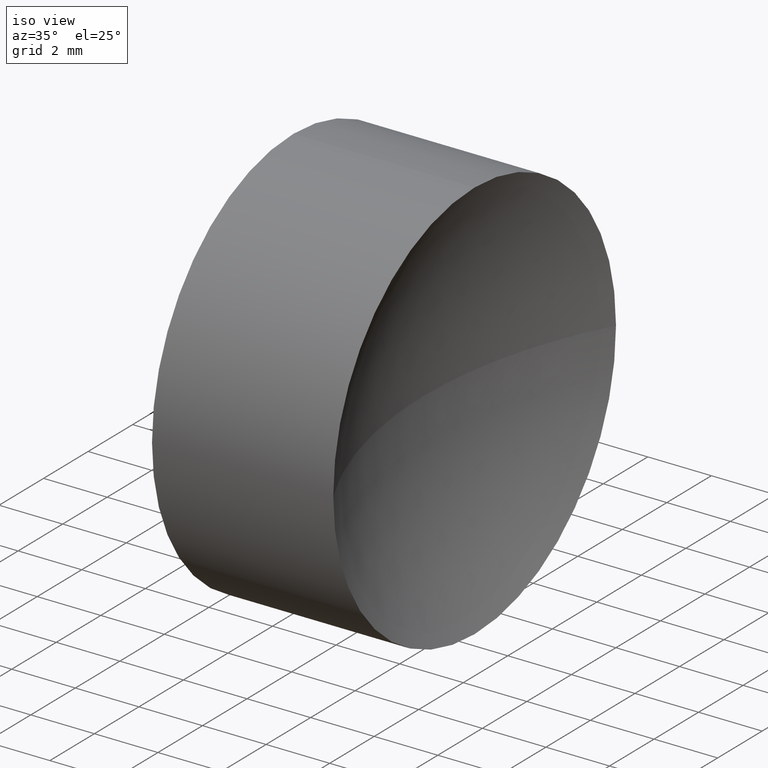
[diagram: clean part render]
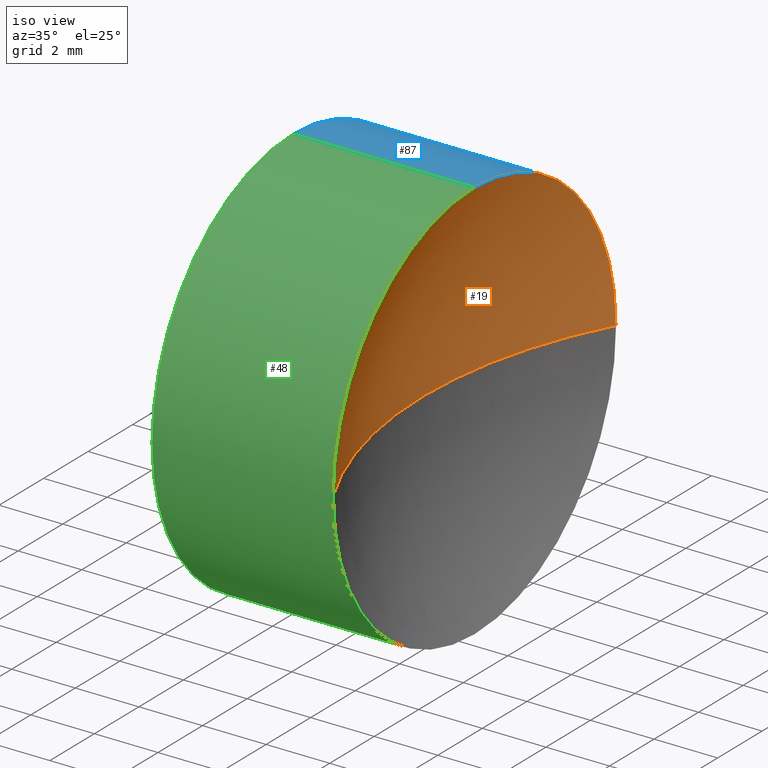
[diagram: same view with three faces highlighted in distinct colors, each labeled with its STEP entity id]
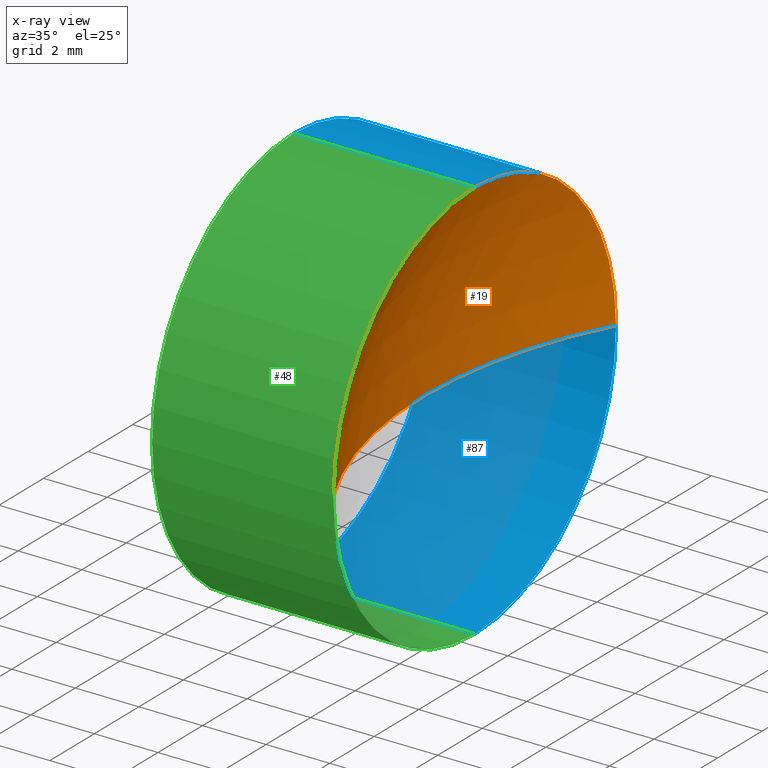
[diagram: x-ray of the same camera — body ghosted, the three highlighted faces saturated]
A machine part, iso view with three faces highlighted in distinct colors.
The next image is the same camera in x-ray (body ghosted, the three faces saturated) — at least one of them is partly hidden behind the body in this view.
Their STEP definitions:

[orange] entity #19 — the highlighted spherical surface has radius 13.4 mm.
#11 = EDGE_CURVE ( 'NONE', #61, #86, #193, .T. ) ;
#12 = DIRECTION ( 'NONE',  ( -1.000000000000000000, -0.0000000000000000000, -0.0000000000000000000 ) ) ;
#17 = ORIENTED_EDGE ( 'NONE', *, *, #145, .T. ) ;
#18 = CIRCLE ( 'NONE', #52, 6.350000000000012100 ) ;
#19 = ADVANCED_FACE ( 'NONE', ( #93 ), #99, .F. ) ;
#24 = DIRECTION ( 'NONE',  ( 0.0000000000000000000, 0.0000000000000000000, 1.000000000000000000 ) ) ;
#26 = DIRECTION ( 'NONE',  ( 0.0000000000000000000, 0.0000000000000000000, 1.000000000000000000 ) ) ;
#29 = EDGE_LOOP ( 'NONE', ( #186, #188, #224, #17 ) ) ;
#32 = CARTESIAN_POINT ( 'NONE',  ( 62.69522198417998000, 26.08904114919495900, 0.0000000000000000000 ) ) ;
#33 = DIRECTION ( 'NONE',  ( -1.000000000000000000, 0.0000000000000000000, 0.0000000000000000000 ) ) ;
#40 = CARTESIAN_POINT ( 'NONE',  ( 50.89532791685886800, 26.08904114919495900, 6.350000000000012100 ) ) ;
#43 = VERTEX_POINT ( 'NONE', #40 ) ;
#44 = DIRECTION ( 'NONE',  ( -1.000000000000000000, -0.0000000000000000000, -0.0000000000000000000 ) ) ;
#52 = AXIS2_PLACEMENT_3D ( 'NONE', #172, #44, #229 ) ;
#55 = CARTESIAN_POINT ( 'NONE',  ( 62.69522198417998000, 26.08904114919495900, 0.0000000000000000000 ) ) ;
#59 = CARTESIAN_POINT ( 'NONE',  ( 50.89532791685886800, 19.73904114919494600, 0.0000000000000000000 ) ) ;
#61 = VERTEX_POINT ( 'NONE', #180 ) ;
#65 = CIRCLE ( 'NONE', #198, 6.350000000000012100 ) ;
#73 = CIRCLE ( 'NONE', #92, 13.40000000000000900 ) ;
#80 = CARTESIAN_POINT ( 'NONE',  ( 50.89532791685886800, 26.08904114919495900, 0.0000000000000000000 ) ) ;
#81 = AXIS2_PLACEMENT_3D ( 'NONE', #55, #24, #216 ) ;
#83 = DIRECTION ( 'NONE',  ( 0.0000000000000000000, 0.0000000000000000000, -1.000000000000000000 ) ) ;
#86 = VERTEX_POINT ( 'NONE', #129 ) ;
#92 = AXIS2_PLACEMENT_3D ( 'NONE', #32, #83, #33 ) ;
#93 = FACE_OUTER_BOUND ( 'NONE', #29, .T. ) ;
#98 = VERTEX_POINT ( 'NONE', #59 ) ;
#99 = SPHERICAL_SURFACE ( 'NONE', #81, 13.40000000000000700 ) ;
#122 = EDGE_CURVE ( 'NONE', #43, #61, #65, .T. ) ;
#126 = DIRECTION ( 'NONE',  ( 0.0000000000000000000, -1.224646799147353200E-016, 1.000000000000000000 ) ) ;
#129 = CARTESIAN_POINT ( 'NONE',  ( 49.29522198417997500, 26.08904114919495900, 0.0000000000000000000 ) ) ;
#143 = CARTESIAN_POINT ( 'NONE',  ( 62.69522198417998000, 26.08904114919495900, 0.0000000000000000000 ) ) ;
#145 = EDGE_CURVE ( 'NONE', #98, #86, #73, .T. ) ;
#172 = CARTESIAN_POINT ( 'NONE',  ( 50.89532791685886800, 26.08904114919495900, 0.0000000000000000000 ) ) ;
#180 = CARTESIAN_POINT ( 'NONE',  ( 50.89532791685886800, 32.43904114919497800, 7.776507174585709900E-016 ) ) ;
#182 = AXIS2_PLACEMENT_3D ( 'NONE', #143, #126, #201 ) ;
#186 = ORIENTED_EDGE ( 'NONE', *, *, #11, .F. ) ;
#188 = ORIENTED_EDGE ( 'NONE', *, *, #122, .F. ) ;
#193 = CIRCLE ( 'NONE', #182, 13.40000000000000700 ) ;
#198 = AXIS2_PLACEMENT_3D ( 'NONE', #80, #12, #26 ) ;
#201 = DIRECTION ( 'NONE',  ( 0.0000000000000000000, -1.000000000000000000, -1.224646799147353200E-016 ) ) ;
#214 = EDGE_CURVE ( 'NONE', #98, #43, #18, .T. ) ;
#216 = DIRECTION ( 'NONE',  ( 0.0000000000000000000, -1.000000000000000000, 0.0000000000000000000 ) ) ;
#224 = ORIENTED_EDGE ( 'NONE', *, *, #214, .F. ) ;
#229 = DIRECTION ( 'NONE',  ( 0.0000000000000000000, 0.0000000000000000000, 1.000000000000000000 ) ) ;

[blue] entity #87 — the highlighted cylindrical surface (partial cylindrical patch) has radius 6.35 mm, axis along (-1, -0, -0).
#8 = DIRECTION ( 'NONE',  ( -1.000000000000000000, -0.0000000000000000000, -0.0000000000000000000 ) ) ;
#12 = DIRECTION ( 'NONE',  ( -1.000000000000000000, -0.0000000000000000000, -0.0000000000000000000 ) ) ;
#14 = EDGE_CURVE ( 'NONE', #43, #156, #141, .T. ) ;
#20 = ORIENTED_EDGE ( 'NONE', *, *, #53, .T. ) ;
#21 = VERTEX_POINT ( 'NONE', #57 ) ;
#25 = VECTOR ( 'NONE', #151, 1000.000000000000000 ) ;
#26 = DIRECTION ( 'NONE',  ( 0.0000000000000000000, 0.0000000000000000000, 1.000000000000000000 ) ) ;
#27 = CARTESIAN_POINT ( 'NONE',  ( 45.19511605150109500, 32.43904114919495600, 0.0000000000000000000 ) ) ;
#38 = ORIENTED_EDGE ( 'NONE', *, *, #122, .T. ) ;
#40 = CARTESIAN_POINT ( 'NONE',  ( 50.89532791685886800, 26.08904114919495900, 6.350000000000012100 ) ) ;
#41 = AXIS2_PLACEMENT_3D ( 'NONE', #75, #114, #220 ) ;
#43 = VERTEX_POINT ( 'NONE', #40 ) ;
#45 = DIRECTION ( 'NONE',  ( 0.0000000000000000000, 0.0000000000000000000, 1.000000000000000000 ) ) ;
#53 = EDGE_CURVE ( 'NONE', #61, #21, #144, .T. ) ;
#57 = CARTESIAN_POINT ( 'NONE',  ( 50.89532791685886800, 26.08904114919495900, -6.350000000000012100 ) ) ;
#61 = VERTEX_POINT ( 'NONE', #180 ) ;
#65 = CIRCLE ( 'NONE', #198, 6.350000000000012100 ) ;
#70 = ORIENTED_EDGE ( 'NONE', *, *, #14, .F. ) ;
#71 = LINE ( 'NONE', #168, #25 ) ;
#75 = CARTESIAN_POINT ( 'NONE',  ( 42.44986111413682300, 26.08904114919495900, 0.0000000000000000000 ) ) ;
#78 = ORIENTED_EDGE ( 'NONE', *, *, #203, .T. ) ;
#80 = CARTESIAN_POINT ( 'NONE',  ( 50.89532791685886800, 26.08904114919495900, 0.0000000000000000000 ) ) ;
#84 = ORIENTED_EDGE ( 'NONE', *, *, #124, .F. ) ;
#87 = ADVANCED_FACE ( 'NONE', ( #105 ), #163, .T. ) ;
#88 = VERTEX_POINT ( 'NONE', #27 ) ;
#91 = VERTEX_POINT ( 'NONE', #218 ) ;
#95 = CARTESIAN_POINT ( 'NONE',  ( 50.89532791685886800, 26.08904114919495900, 0.0000000000000000000 ) ) ;
#105 = FACE_OUTER_BOUND ( 'NONE', #125, .T. ) ;
#114 = DIRECTION ( 'NONE',  ( -1.000000000000000000, -0.0000000000000000000, -0.0000000000000000000 ) ) ;
#119 = CARTESIAN_POINT ( 'NONE',  ( 45.19511605150109500, 26.08904114919495900, 0.0000000000000000000 ) ) ;
#122 = EDGE_CURVE ( 'NONE', #43, #61, #65, .T. ) ;
#123 = CIRCLE ( 'NONE', #176, 6.349999999999997900 ) ;
#124 = EDGE_CURVE ( 'NONE', #156, #88, #123, .T. ) ;
#125 = EDGE_LOOP ( 'NONE', ( #20, #78, #130, #84, #70, #38 ) ) ;
#130 = ORIENTED_EDGE ( 'NONE', *, *, #217, .F. ) ;
#141 = LINE ( 'NONE', #199, #178 ) ;
#144 = CIRCLE ( 'NONE', #160, 6.350000000000012100 ) ;
#148 = AXIS2_PLACEMENT_3D ( 'NONE', #119, #190, #45 ) ;
#151 = DIRECTION ( 'NONE',  ( -1.000000000000000000, -0.0000000000000000000, -0.0000000000000000000 ) ) ;
#152 = CARTESIAN_POINT ( 'NONE',  ( 45.19511605150109500, 26.08904114919495900, 6.349999999999997900 ) ) ;
#156 = VERTEX_POINT ( 'NONE', #152 ) ;
#160 = AXIS2_PLACEMENT_3D ( 'NONE', #95, #8, #181 ) ;
#163 = CYLINDRICAL_SURFACE ( 'NONE', #41, 6.349999999999997900 ) ;
#168 = CARTESIAN_POINT ( 'NONE',  ( 42.44986111413682300, 26.08904114919495900, -6.349999999999997900 ) ) ;
#176 = AXIS2_PLACEMENT_3D ( 'NONE', #223, #207, #230 ) ;
#178 = VECTOR ( 'NONE', #179, 1000.000000000000000 ) ;
#179 = DIRECTION ( 'NONE',  ( -1.000000000000000000, -0.0000000000000000000, -0.0000000000000000000 ) ) ;
#180 = CARTESIAN_POINT ( 'NONE',  ( 50.89532791685886800, 32.43904114919497800, 7.776507174585709900E-016 ) ) ;
#181 = DIRECTION ( 'NONE',  ( 0.0000000000000000000, 0.0000000000000000000, 1.000000000000000000 ) ) ;
#190 = DIRECTION ( 'NONE',  ( -1.000000000000000000, -0.0000000000000000000, -0.0000000000000000000 ) ) ;
#197 = CIRCLE ( 'NONE', #148, 6.349999999999997900 ) ;
#198 = AXIS2_PLACEMENT_3D ( 'NONE', #80, #12, #26 ) ;
#199 = CARTESIAN_POINT ( 'NONE',  ( 42.44986111413682300, 26.08904114919495900, 6.349999999999997900 ) ) ;
#203 = EDGE_CURVE ( 'NONE', #21, #91, #71, .T. ) ;
#207 = DIRECTION ( 'NONE',  ( -1.000000000000000000, -0.0000000000000000000, -0.0000000000000000000 ) ) ;
#217 = EDGE_CURVE ( 'NONE', #88, #91, #197, .T. ) ;
#218 = CARTESIAN_POINT ( 'NONE',  ( 45.19511605150109500, 26.08904114919495900, -6.349999999999997900 ) ) ;
#220 = DIRECTION ( 'NONE',  ( 0.0000000000000000000, 0.0000000000000000000, 1.000000000000000000 ) ) ;
#223 = CARTESIAN_POINT ( 'NONE',  ( 45.19511605150109500, 26.08904114919495900, 0.0000000000000000000 ) ) ;
#230 = DIRECTION ( 'NONE',  ( 0.0000000000000000000, 0.0000000000000000000, 1.000000000000000000 ) ) ;

[green] entity #48 — the highlighted cylindrical surface (partial cylindrical patch) has radius 6.35 mm, axis along (-1, -0, -0).
#1 = EDGE_CURVE ( 'NONE', #21, #98, #13, .T. ) ;
#3 = CIRCLE ( 'NONE', #191, 6.349999999999997900 ) ;
#5 = ORIENTED_EDGE ( 'NONE', *, *, #14, .T. ) ;
#13 = CIRCLE ( 'NONE', #140, 6.350000000000012100 ) ;
#14 = EDGE_CURVE ( 'NONE', #43, #156, #141, .T. ) ;
#18 = CIRCLE ( 'NONE', #52, 6.350000000000012100 ) ;
#21 = VERTEX_POINT ( 'NONE', #57 ) ;
#25 = VECTOR ( 'NONE', #151, 1000.000000000000000 ) ;
#28 = CARTESIAN_POINT ( 'NONE',  ( 45.19511605150109500, 26.08904114919495900, 0.0000000000000000000 ) ) ;
#31 = CARTESIAN_POINT ( 'NONE',  ( 45.19511605150109500, 26.08904114919495900, 0.0000000000000000000 ) ) ;
#34 = CYLINDRICAL_SURFACE ( 'NONE', #153, 6.349999999999997900 ) ;
#39 = CARTESIAN_POINT ( 'NONE',  ( 45.19511605150109500, 19.73904114919496800, -7.776507174585690200E-016 ) ) ;
#40 = CARTESIAN_POINT ( 'NONE',  ( 50.89532791685886800, 26.08904114919495900, 6.350000000000012100 ) ) ;
#43 = VERTEX_POINT ( 'NONE', #40 ) ;
#44 = DIRECTION ( 'NONE',  ( -1.000000000000000000, -0.0000000000000000000, -0.0000000000000000000 ) ) ;
#48 = ADVANCED_FACE ( 'NONE', ( #51 ), #34, .T. ) ;
#51 = FACE_OUTER_BOUND ( 'NONE', #120, .T. ) ;
#52 = AXIS2_PLACEMENT_3D ( 'NONE', #172, #44, #229 ) ;
#56 = ORIENTED_EDGE ( 'NONE', *, *, #214, .T. ) ;
#57 = CARTESIAN_POINT ( 'NONE',  ( 50.89532791685886800, 26.08904114919495900, -6.350000000000012100 ) ) ;
#59 = CARTESIAN_POINT ( 'NONE',  ( 50.89532791685886800, 19.73904114919494600, 0.0000000000000000000 ) ) ;
#60 = EDGE_CURVE ( 'NONE', #133, #156, #175, .T. ) ;
#71 = LINE ( 'NONE', #168, #25 ) ;
#72 = AXIS2_PLACEMENT_3D ( 'NONE', #28, #204, #96 ) ;
#74 = DIRECTION ( 'NONE',  ( 0.0000000000000000000, 0.0000000000000000000, 1.000000000000000000 ) ) ;
#77 = DIRECTION ( 'NONE',  ( 0.0000000000000000000, 0.0000000000000000000, 1.000000000000000000 ) ) ;
#90 = CARTESIAN_POINT ( 'NONE',  ( 50.89532791685886800, 26.08904114919495900, 0.0000000000000000000 ) ) ;
#91 = VERTEX_POINT ( 'NONE', #218 ) ;
#96 = DIRECTION ( 'NONE',  ( 0.0000000000000000000, 0.0000000000000000000, 1.000000000000000000 ) ) ;
#98 = VERTEX_POINT ( 'NONE', #59 ) ;
#102 = DIRECTION ( 'NONE',  ( 0.0000000000000000000, 0.0000000000000000000, 1.000000000000000000 ) ) ;
#120 = EDGE_LOOP ( 'NONE', ( #232, #159, #56, #5, #177, #221 ) ) ;
#133 = VERTEX_POINT ( 'NONE', #39 ) ;
#139 = DIRECTION ( 'NONE',  ( -1.000000000000000000, -0.0000000000000000000, -0.0000000000000000000 ) ) ;
#140 = AXIS2_PLACEMENT_3D ( 'NONE', #90, #139, #74 ) ;
#141 = LINE ( 'NONE', #199, #178 ) ;
#151 = DIRECTION ( 'NONE',  ( -1.000000000000000000, -0.0000000000000000000, -0.0000000000000000000 ) ) ;
#152 = CARTESIAN_POINT ( 'NONE',  ( 45.19511605150109500, 26.08904114919495900, 6.349999999999997900 ) ) ;
#153 = AXIS2_PLACEMENT_3D ( 'NONE', #165, #167, #77 ) ;
#155 = DIRECTION ( 'NONE',  ( -1.000000000000000000, -0.0000000000000000000, -0.0000000000000000000 ) ) ;
#156 = VERTEX_POINT ( 'NONE', #152 ) ;
#157 = EDGE_CURVE ( 'NONE', #91, #133, #3, .T. ) ;
#159 = ORIENTED_EDGE ( 'NONE', *, *, #1, .T. ) ;
#165 = CARTESIAN_POINT ( 'NONE',  ( 42.44986111413682300, 26.08904114919495900, 0.0000000000000000000 ) ) ;
#167 = DIRECTION ( 'NONE',  ( -1.000000000000000000, -0.0000000000000000000, -0.0000000000000000000 ) ) ;
#168 = CARTESIAN_POINT ( 'NONE',  ( 42.44986111413682300, 26.08904114919495900, -6.349999999999997900 ) ) ;
#172 = CARTESIAN_POINT ( 'NONE',  ( 50.89532791685886800, 26.08904114919495900, 0.0000000000000000000 ) ) ;
#175 = CIRCLE ( 'NONE', #72, 6.349999999999997900 ) ;
#177 = ORIENTED_EDGE ( 'NONE', *, *, #60, .F. ) ;
#178 = VECTOR ( 'NONE', #179, 1000.000000000000000 ) ;
#179 = DIRECTION ( 'NONE',  ( -1.000000000000000000, -0.0000000000000000000, -0.0000000000000000000 ) ) ;
#191 = AXIS2_PLACEMENT_3D ( 'NONE', #31, #155, #102 ) ;
#199 = CARTESIAN_POINT ( 'NONE',  ( 42.44986111413682300, 26.08904114919495900, 6.349999999999997900 ) ) ;
#203 = EDGE_CURVE ( 'NONE', #21, #91, #71, .T. ) ;
#204 = DIRECTION ( 'NONE',  ( -1.000000000000000000, -0.0000000000000000000, -0.0000000000000000000 ) ) ;
#214 = EDGE_CURVE ( 'NONE', #98, #43, #18, .T. ) ;
#218 = CARTESIAN_POINT ( 'NONE',  ( 45.19511605150109500, 26.08904114919495900, -6.349999999999997900 ) ) ;
#221 = ORIENTED_EDGE ( 'NONE', *, *, #157, .F. ) ;
#229 = DIRECTION ( 'NONE',  ( 0.0000000000000000000, 0.0000000000000000000, 1.000000000000000000 ) ) ;
#232 = ORIENTED_EDGE ( 'NONE', *, *, #203, .F. ) ;